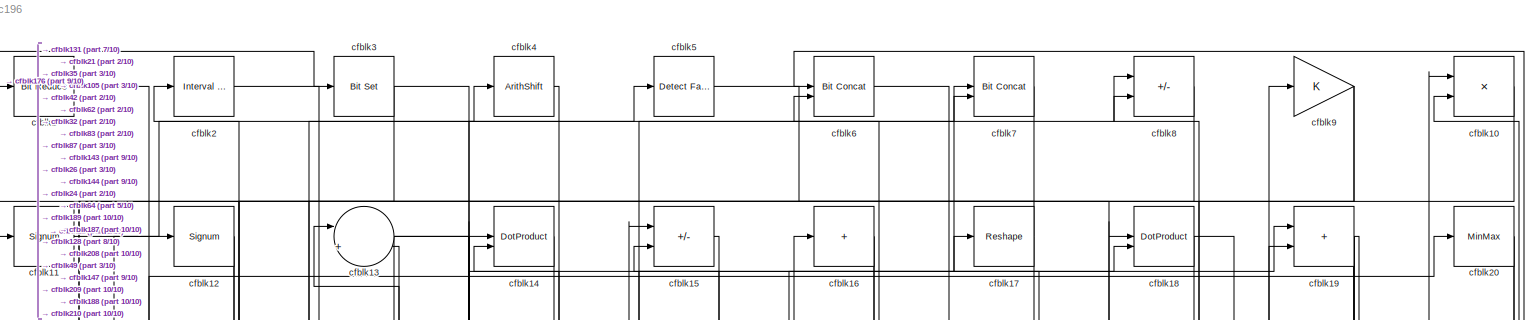
[diagram: root canvas - part 1/10, full width, top band]
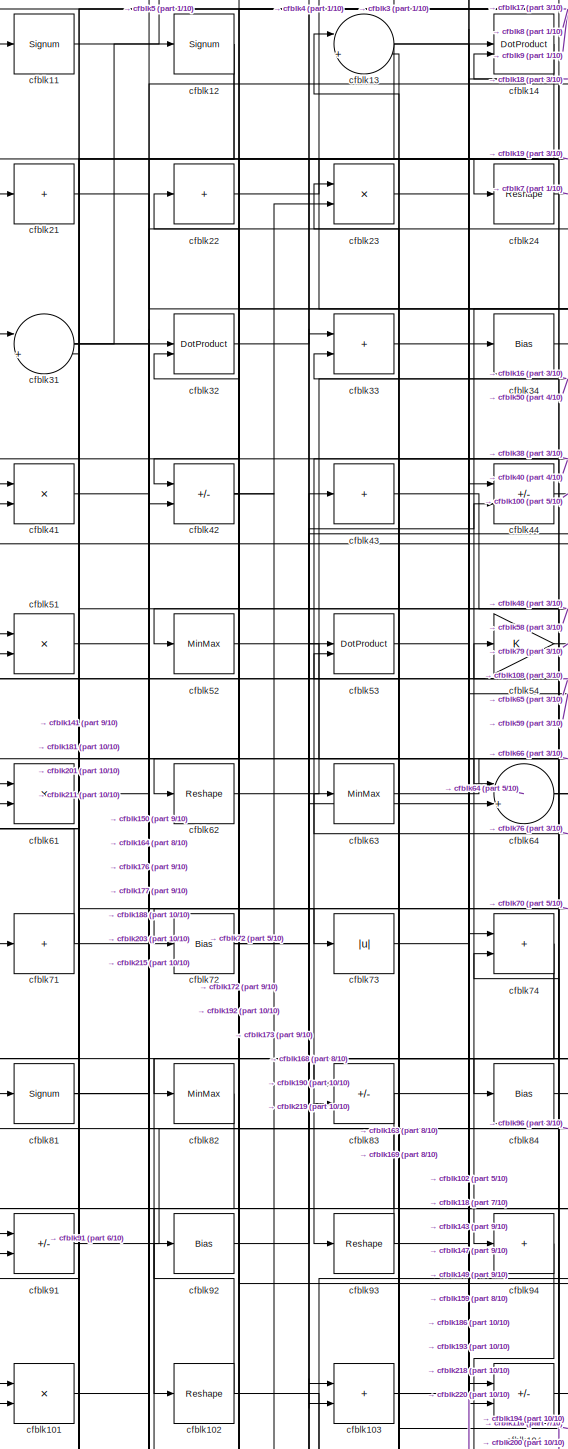
[diagram: root canvas - part 2/10, top left region]
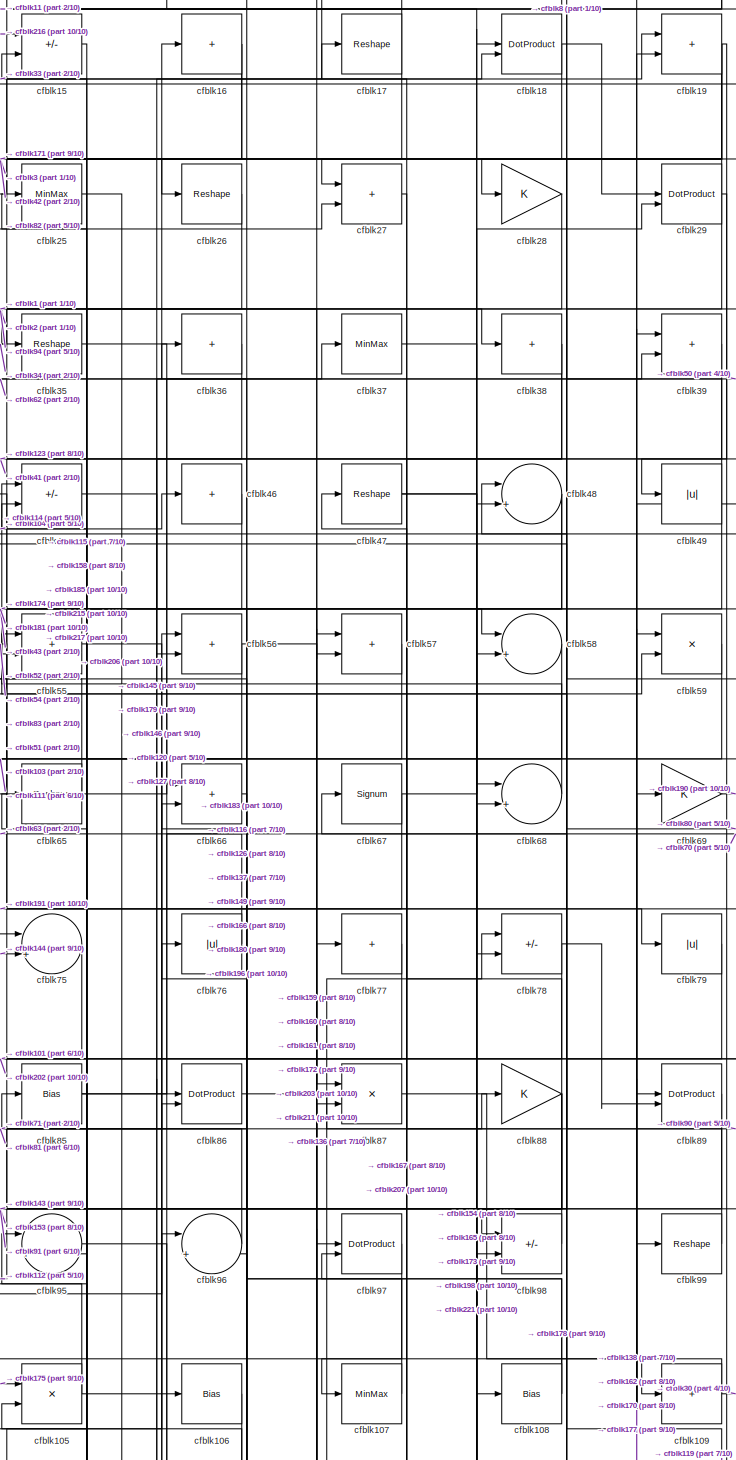
[diagram: root canvas - part 3/10, top center region]
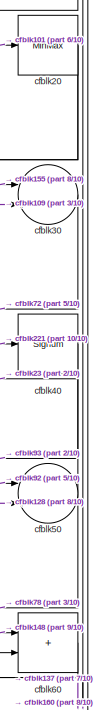
[diagram: root canvas - part 4/10, top right region]
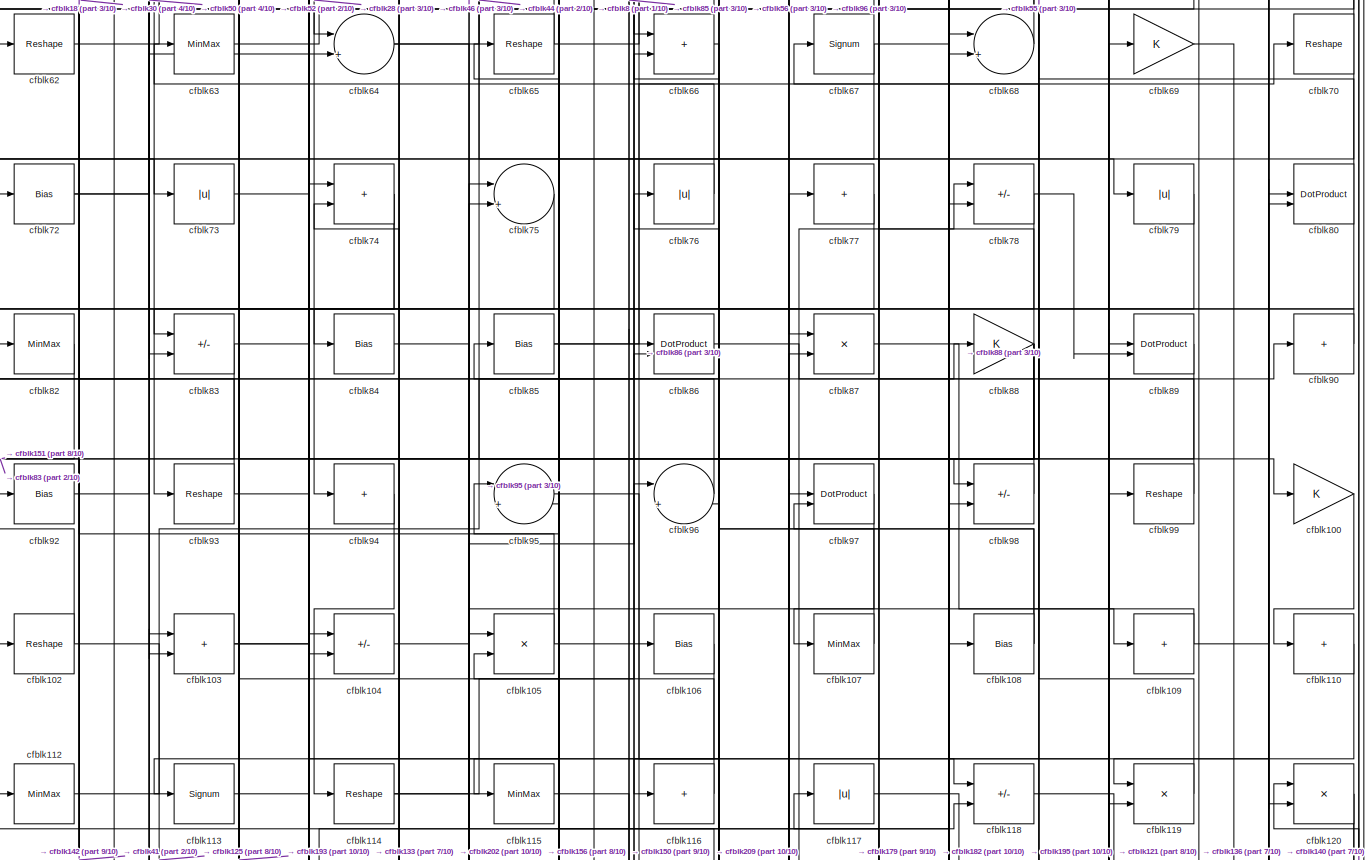
[diagram: root canvas - part 5/10, full width, middle band]
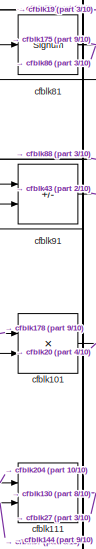
[diagram: root canvas - part 6/10, middle left region]
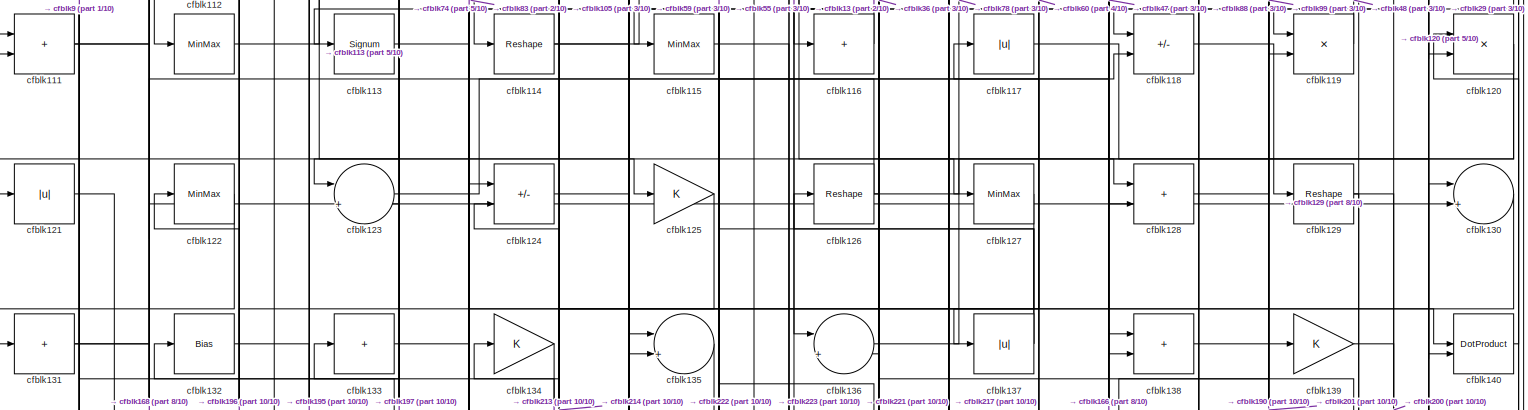
[diagram: root canvas - part 7/10, full width, middle band]
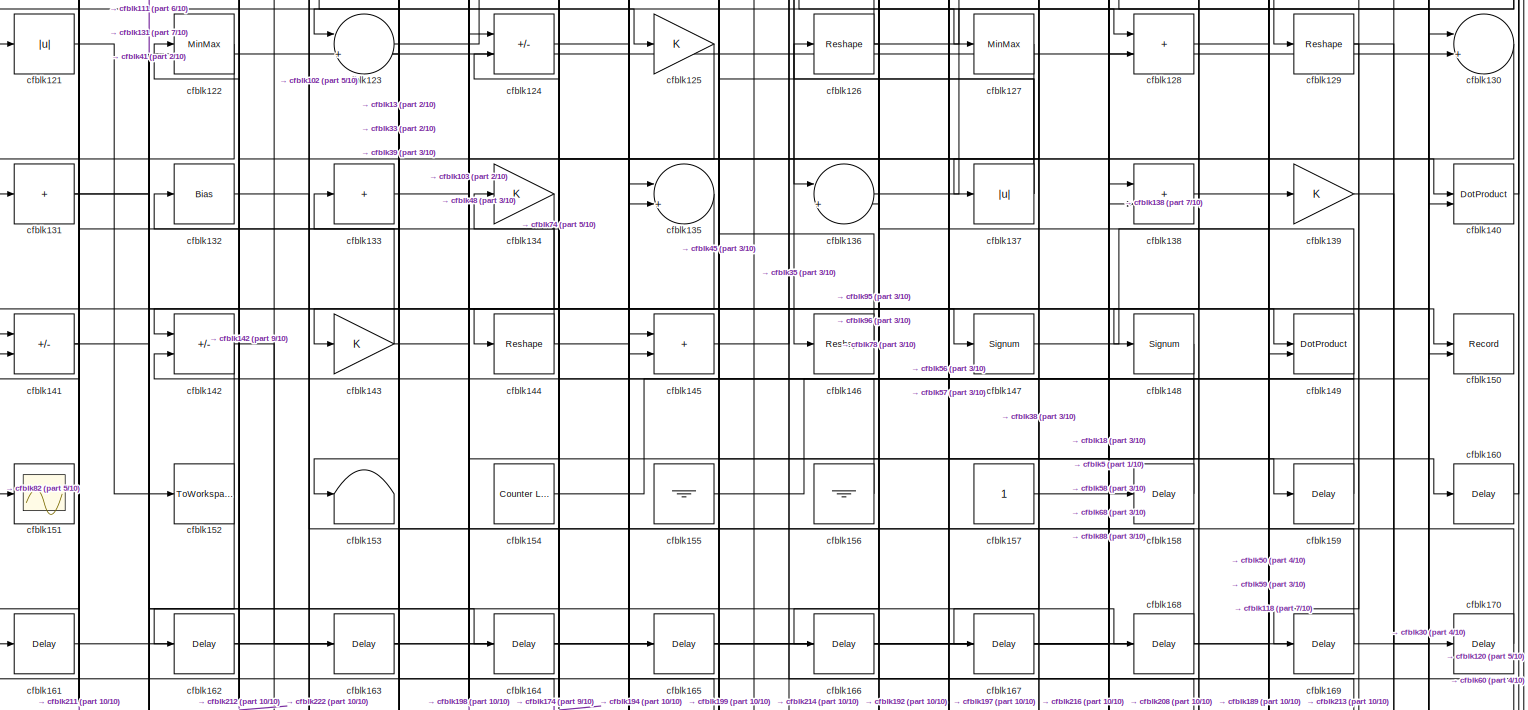
[diagram: root canvas - part 8/10, full width, middle band]
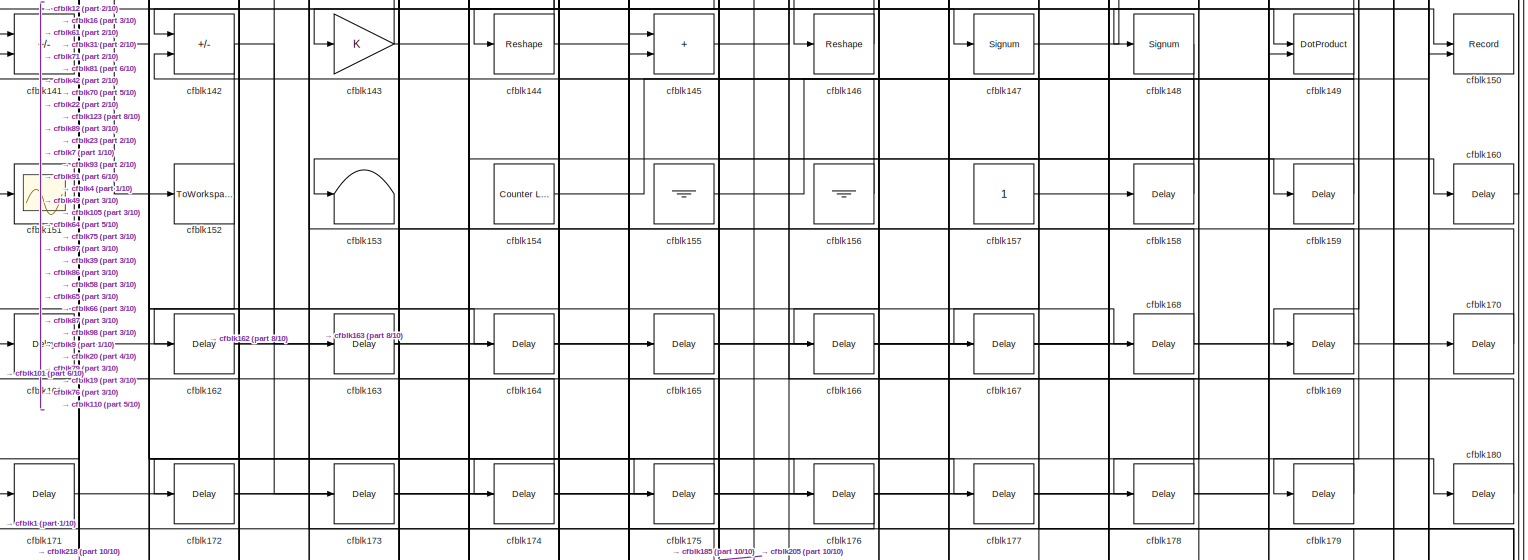
[diagram: root canvas - part 9/10, full width, bottom band]
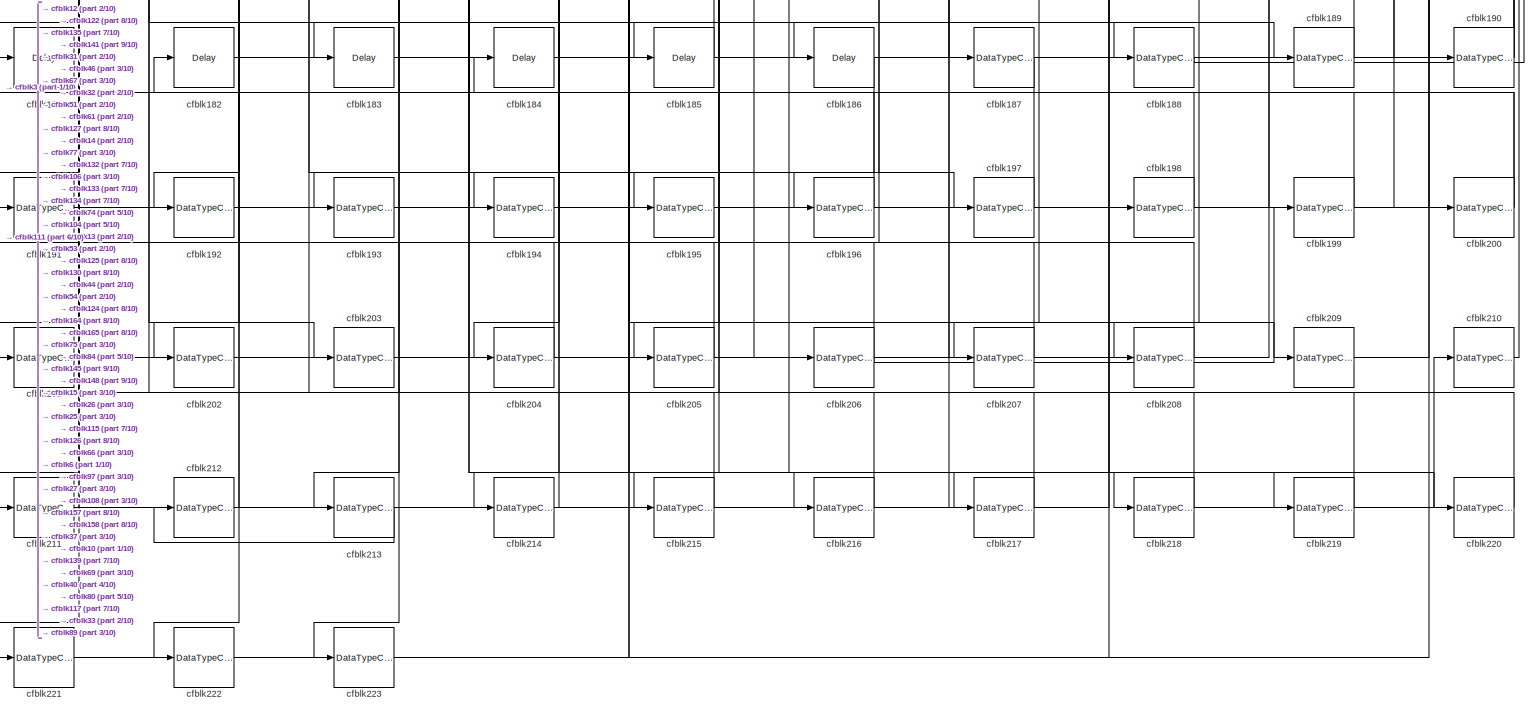
[diagram: root canvas - part 10/10, full width, bottom band]
MODEL slx_769033dcc196
KIND model
CONFIG AbsTol = auto
CONFIG EnableMultiTasking = off
CONFIG FixedStep = auto
CONFIG MaxStep = auto
CONFIG MinStep = auto
CONFIG RelTol = 1e-3
CONFIG SampleTimeConstraint = Unconstrained
CONFIG SolverName = VariableStepAuto
CONFIG StartTime = 0.0
CONFIG StopTime = 10.0
BLOCK [Reference] cfblk1  REF=hdlsllib/Logic and Bit
Operations/Bit Reduce
  SourceBlock = hdlsllib/Logic and Bit\nOperations/Bit Reduce
  SourceType = Bit Reduce
BLOCK [Product] cfblk10
  Inputs = */
  RndMeth = Zero
  SaturateOnIntegerOverflow = on
BLOCK [Gain] cfblk100
BLOCK [Product] cfblk101
  Inputs = */
  RndMeth = Zero
  SaturateOnIntegerOverflow = on
BLOCK [Reshape] cfblk102
BLOCK [Sum] cfblk103
  IconShape = rectangular
BLOCK [Sum] cfblk104
  IconShape = rectangular
  Inputs = +-
BLOCK [Product] cfblk105
  Inputs = */
  RndMeth = Zero
  SaturateOnIntegerOverflow = on
BLOCK [Bias] cfblk106
  Bias = 0.0
  SaturateOnIntegerOverflow = off
BLOCK [MinMax] cfblk107
BLOCK [Bias] cfblk108
  Bias = 0.0
  SaturateOnIntegerOverflow = off
BLOCK [Sum] cfblk109
  IconShape = rectangular
  Inputs = +
BLOCK [Signum] cfblk11
BLOCK [Sum] cfblk110
  IconShape = rectangular
  Inputs = +
BLOCK [Sum] cfblk111
  IconShape = rectangular
BLOCK [MinMax] cfblk112
BLOCK [Signum] cfblk113
BLOCK [Reshape] cfblk114
BLOCK [MinMax] cfblk115
BLOCK [Sum] cfblk116
  IconShape = rectangular
  Inputs = +
BLOCK [Abs] cfblk117
  SaturateOnIntegerOverflow = off
BLOCK [Sum] cfblk118
  IconShape = rectangular
  Inputs = +-
BLOCK [Product] cfblk119
  Inputs = */
  RndMeth = Zero
  SaturateOnIntegerOverflow = on
BLOCK [Signum] cfblk12
BLOCK [Product] cfblk120
  Inputs = */
  RndMeth = Zero
  SaturateOnIntegerOverflow = on
BLOCK [Abs] cfblk121
  SaturateOnIntegerOverflow = off
BLOCK [MinMax] cfblk122
BLOCK [Sum] cfblk123
  Inputs = |++
BLOCK [Sum] cfblk124
  IconShape = rectangular
  Inputs = +-
BLOCK [Gain] cfblk125
BLOCK [Reshape] cfblk126
BLOCK [MinMax] cfblk127
BLOCK [Sum] cfblk128
  IconShape = rectangular
BLOCK [Reshape] cfblk129
BLOCK [Sum] cfblk13
  Inputs = |++
BLOCK [Sum] cfblk130
  Inputs = |++
BLOCK [Sum] cfblk131
  IconShape = rectangular
  Inputs = +
BLOCK [Bias] cfblk132
  Bias = 0.0
  SaturateOnIntegerOverflow = off
BLOCK [Sum] cfblk133
  IconShape = rectangular
  Inputs = +
BLOCK [Gain] cfblk134
BLOCK [Sum] cfblk135
  Inputs = |++
BLOCK [Sum] cfblk136
  Inputs = |++
BLOCK [Abs] cfblk137
  SaturateOnIntegerOverflow = off
BLOCK [Sum] cfblk138
  IconShape = rectangular
BLOCK [Gain] cfblk139
BLOCK [DotProduct] cfblk14
  OutDataTypeStr = Inherit: Inherit via internal rule
BLOCK [DotProduct] cfblk140
  OutDataTypeStr = Inherit: Inherit via internal rule
BLOCK [Sum] cfblk141
  IconShape = rectangular
  Inputs = +-
BLOCK [Sum] cfblk142
  IconShape = rectangular
  Inputs = +-
BLOCK [Gain] cfblk143
BLOCK [Reshape] cfblk144
BLOCK [Sum] cfblk145
  IconShape = rectangular
BLOCK [Reshape] cfblk146
BLOCK [Signum] cfblk147
BLOCK [Signum] cfblk148
BLOCK [DotProduct] cfblk149
  OutDataTypeStr = Inherit: Inherit via internal rule
BLOCK [Sum] cfblk15
  IconShape = rectangular
  Inputs = +-
BLOCK [Record] cfblk150
  CompatibilityTag = XY
  FileSettingsInternal = {"entries":[{"content":{"excelSettings":{"content":{},"type":"Streamout.ExcelSettings"}},"type":"Streamout.FileSettingStorage","uuid":""}],"packageUris":["http:\/\/schema.mathworks.com\/mf0\/streamout_blocks\/R2020a"],"version":"1.0"}
  Layout = [1 1]
  SignalsInternal = {"entries":[{"content":{"signals":[{"content":{"blockPath":[],"dimensions":[1],"domain":"","lineColor":"#a2142f","plots":[1],"port":1,"signalID":1100,"signalName":"XY Graph:1"},"type":"RecordBlkView.Signal","uuid":""},{"content":{"blockPath":[],"dimensions":[1],"domain":"","lineColor":"#139fff","plots":[1],"port":2,"signalID":1103,"signalName":"XY Graph:2"},"type":"RecordBlkView.Signal","uuid":""}...<+146ch>
  VisualizationBindings = {"xyplotplugin":{"info":[{"series":[{"bindingParametersList":[{"parameter":"X-Axis","signalID":1100,"signalName":"XY Graph:1"},{"parameter":"Y-Axis","signalID":1103,"signalName":"XY Graph:2"}],"seriesID":10004}],"subplotID":1}]}}
  st = -1
BLOCK [Scope] cfblk151
  Floating = off
  NumInputPorts = 1
  ScopeSpecificationString = Simulink.scopes.TimeScopeBlockCfg('CurrentConfiguration', extmgr.ConfigurationSet(extmgr.Configuration('Core','General UI',true),extmgr.Configuration('Core','Source UI',true),extmgr.Configuration('Sources','WiredSimulink',true,'DataLoggingVariableName','ScopeData2','DataLoggingSaveFormat','Array','DataLoggingLimitDataPoints',true,'DataLoggingDecimation','1'),extmgr.Configuration('Visuals','Time Do...<+868ch>
BLOCK [ToWorkspace] cfblk152
  MaxDataPoints = inf
  SampleTime = -1
  SaveFormat = Timeseries
  VariableName = simout
BLOCK [Terminator] cfblk153
BLOCK [Reference] cfblk154  REF=hdlsllib/Sources/Counter
Limited
  SourceBlock = hdlsllib/Sources/Counter\nLimited
  SourceType = Counter Limited
BLOCK [Ground] cfblk155
BLOCK [Ground] cfblk156
BLOCK [Constant] cfblk157
  SampleTime = -1
BLOCK [Delay] cfblk158
  InputPortMap = u0
  SampleTime = 1
BLOCK [Delay] cfblk159
  InputPortMap = u0
  SampleTime = 1
BLOCK [Sum] cfblk16
  IconShape = rectangular
  Inputs = +
BLOCK [Delay] cfblk160
  InputPortMap = u0
  SampleTime = 1
BLOCK [Delay] cfblk161
  InputPortMap = u0
  SampleTime = 1
BLOCK [Delay] cfblk162
  InputPortMap = u0
  SampleTime = 1
BLOCK [Delay] cfblk163
  InputPortMap = u0
  SampleTime = 1
BLOCK [Delay] cfblk164
  InputPortMap = u0
  SampleTime = 1
BLOCK [Delay] cfblk165
  InputPortMap = u0
  SampleTime = 1
BLOCK [Delay] cfblk166
  InputPortMap = u0
  SampleTime = 1
BLOCK [Delay] cfblk167
  InputPortMap = u0
  SampleTime = 1
BLOCK [Delay] cfblk168
  InputPortMap = u0
  SampleTime = 1
BLOCK [Delay] cfblk169
  InputPortMap = u0
  SampleTime = 1
BLOCK [Reshape] cfblk17
BLOCK [Delay] cfblk170
  InputPortMap = u0
  SampleTime = 1
BLOCK [Delay] cfblk171
  InputPortMap = u0
  SampleTime = 1
BLOCK [Delay] cfblk172
  InputPortMap = u0
  SampleTime = 1
BLOCK [Delay] cfblk173
  InputPortMap = u0
  SampleTime = 1
BLOCK [Delay] cfblk174
  InputPortMap = u0
  SampleTime = 1
BLOCK [Delay] cfblk175
  InputPortMap = u0
  SampleTime = 1
BLOCK [Delay] cfblk176
  InputPortMap = u0
  SampleTime = 1
BLOCK [Delay] cfblk177
  InputPortMap = u0
  SampleTime = 1
BLOCK [Delay] cfblk178
  InputPortMap = u0
  SampleTime = 1
BLOCK [Delay] cfblk179
  InputPortMap = u0
  SampleTime = 1
BLOCK [DotProduct] cfblk18
  OutDataTypeStr = Inherit: Inherit via internal rule
BLOCK [Delay] cfblk180
  InputPortMap = u0
  SampleTime = 1
BLOCK [Delay] cfblk181
  InputPortMap = u0
  SampleTime = 1
BLOCK [Delay] cfblk182
  InputPortMap = u0
  SampleTime = 1
BLOCK [Delay] cfblk183
  InputPortMap = u0
  SampleTime = 1
BLOCK [Delay] cfblk184
  InputPortMap = u0
  SampleTime = 1
BLOCK [Delay] cfblk185
  InputPortMap = u0
  SampleTime = 1
BLOCK [Delay] cfblk186
  InputPortMap = u0
  SampleTime = 1
BLOCK [DataTypeConversion] cfblk187
  OutDataTypeStr = uint8
  RndMeth = Floor
  SaturateOnIntegerOverflow = off
BLOCK [DataTypeConversion] cfblk188
  OutDataTypeStr = uint8
  RndMeth = Floor
  SaturateOnIntegerOverflow = off
BLOCK [DataTypeConversion] cfblk189
  OutDataTypeStr = uint8
  RndMeth = Floor
  SaturateOnIntegerOverflow = off
BLOCK [Sum] cfblk19
  IconShape = rectangular
BLOCK [DataTypeConversion] cfblk190
  RndMeth = Floor
  SaturateOnIntegerOverflow = off
BLOCK [DataTypeConversion] cfblk191
  OutDataTypeStr = uint8
  RndMeth = Floor
  SaturateOnIntegerOverflow = off
BLOCK [DataTypeConversion] cfblk192
  OutDataTypeStr = uint8
  RndMeth = Floor
  SaturateOnIntegerOverflow = off
BLOCK [DataTypeConversion] cfblk193
  OutDataTypeStr = uint8
  RndMeth = Floor
  SaturateOnIntegerOverflow = off
BLOCK [DataTypeConversion] cfblk194
  OutDataTypeStr = uint8
  RndMeth = Floor
  SaturateOnIntegerOverflow = off
BLOCK [DataTypeConversion] cfblk195
  OutDataTypeStr = uint8
  RndMeth = Floor
  SaturateOnIntegerOverflow = off
BLOCK [DataTypeConversion] cfblk196
  OutDataTypeStr = uint8
  RndMeth = Floor
  SaturateOnIntegerOverflow = off
BLOCK [DataTypeConversion] cfblk197
  RndMeth = Floor
  SaturateOnIntegerOverflow = off
BLOCK [DataTypeConversion] cfblk198
  OutDataTypeStr = uint8
  RndMeth = Floor
  SaturateOnIntegerOverflow = off
BLOCK [DataTypeConversion] cfblk199
  OutDataTypeStr = uint8
  RndMeth = Floor
  SaturateOnIntegerOverflow = off
BLOCK [Reference] cfblk2  REF=hdlsllib/Logic and Bit
Operations/Interval Test
  SourceBlock = hdlsllib/Logic and Bit\nOperations/Interval Test
  SourceType = Interval Test
BLOCK [MinMax] cfblk20
BLOCK [DataTypeConversion] cfblk200
  RndMeth = Floor
  SaturateOnIntegerOverflow = off
BLOCK [DataTypeConversion] cfblk201
  OutDataTypeStr = uint8
  RndMeth = Floor
  SaturateOnIntegerOverflow = off
BLOCK [DataTypeConversion] cfblk202
  OutDataTypeStr = uint8
  RndMeth = Floor
  SaturateOnIntegerOverflow = off
BLOCK [DataTypeConversion] cfblk203
  OutDataTypeStr = uint8
  RndMeth = Floor
  SaturateOnIntegerOverflow = off
BLOCK [DataTypeConversion] cfblk204
  OutDataTypeStr = uint8
  RndMeth = Floor
  SaturateOnIntegerOverflow = off
BLOCK [DataTypeConversion] cfblk205
  OutDataTypeStr = uint8
  RndMeth = Floor
  SaturateOnIntegerOverflow = off
BLOCK [DataTypeConversion] cfblk206
  RndMeth = Floor
  SaturateOnIntegerOverflow = off
BLOCK [DataTypeConversion] cfblk207
  OutDataTypeStr = uint8
  RndMeth = Floor
  SaturateOnIntegerOverflow = off
BLOCK [DataTypeConversion] cfblk208
  OutDataTypeStr = uint8
  RndMeth = Floor
  SaturateOnIntegerOverflow = off
BLOCK [DataTypeConversion] cfblk209
  OutDataTypeStr = uint8
  RndMeth = Floor
  SaturateOnIntegerOverflow = off
BLOCK [Sum] cfblk21
  IconShape = rectangular
  Inputs = +
BLOCK [DataTypeConversion] cfblk210
  OutDataTypeStr = uint8
  RndMeth = Floor
  SaturateOnIntegerOverflow = off
BLOCK [DataTypeConversion] cfblk211
  RndMeth = Floor
  SaturateOnIntegerOverflow = off
BLOCK [DataTypeConversion] cfblk212
  OutDataTypeStr = uint8
  RndMeth = Floor
  SaturateOnIntegerOverflow = off
BLOCK [DataTypeConversion] cfblk213
  RndMeth = Floor
  SaturateOnIntegerOverflow = off
BLOCK [DataTypeConversion] cfblk214
  OutDataTypeStr = uint8
  RndMeth = Floor
  SaturateOnIntegerOverflow = off
BLOCK [DataTypeConversion] cfblk215
  OutDataTypeStr = uint8
  RndMeth = Floor
  SaturateOnIntegerOverflow = off
BLOCK [DataTypeConversion] cfblk216
  OutDataTypeStr = uint8
  RndMeth = Floor
  SaturateOnIntegerOverflow = off
BLOCK [DataTypeConversion] cfblk217
  OutDataTypeStr = uint8
  RndMeth = Floor
  SaturateOnIntegerOverflow = off
BLOCK [DataTypeConversion] cfblk218
  RndMeth = Floor
  SaturateOnIntegerOverflow = off
BLOCK [DataTypeConversion] cfblk219
  OutDataTypeStr = uint8
  RndMeth = Floor
  SaturateOnIntegerOverflow = off
BLOCK [Sum] cfblk22
  IconShape = rectangular
  Inputs = +
BLOCK [DataTypeConversion] cfblk220
  OutDataTypeStr = uint8
  RndMeth = Floor
  SaturateOnIntegerOverflow = off
BLOCK [DataTypeConversion] cfblk221
  RndMeth = Floor
  SaturateOnIntegerOverflow = off
BLOCK [DataTypeConversion] cfblk222
  OutDataTypeStr = uint8
  RndMeth = Floor
  SaturateOnIntegerOverflow = off
BLOCK [DataTypeConversion] cfblk223
  OutDataTypeStr = uint8
  RndMeth = Floor
  SaturateOnIntegerOverflow = off
BLOCK [Product] cfblk23
  Inputs = */
  RndMeth = Zero
  SaturateOnIntegerOverflow = on
BLOCK [Reshape] cfblk24
BLOCK [MinMax] cfblk25
BLOCK [Reshape] cfblk26
BLOCK [Sum] cfblk27
  IconShape = rectangular
BLOCK [Gain] cfblk28
BLOCK [DotProduct] cfblk29
  OutDataTypeStr = Inherit: Inherit via internal rule
BLOCK [Reference] cfblk3  REF=simulink/Logic and Bit
Operations/Bit Set
  LibrarySourceBlock = hdlsllib/Logic and Bit\nOperations/Bit Set
  SourceBlock = simulink/Logic and Bit\nOperations/Bit Set
  SourceType = Bit Set
BLOCK [Sum] cfblk30
  Inputs = |++
BLOCK [Sum] cfblk31
  Inputs = |++
BLOCK [DotProduct] cfblk32
  OutDataTypeStr = Inherit: Inherit via internal rule
BLOCK [Sum] cfblk33
  IconShape = rectangular
BLOCK [Bias] cfblk34
  Bias = 0.0
  SaturateOnIntegerOverflow = off
BLOCK [Reshape] cfblk35
BLOCK [Sum] cfblk36
  IconShape = rectangular
  Inputs = +
BLOCK [MinMax] cfblk37
BLOCK [Sum] cfblk38
  IconShape = rectangular
  Inputs = +
BLOCK [Sum] cfblk39
  IconShape = rectangular
BLOCK [ArithShift] cfblk4
  BitShiftNumber = 8
  InputPortMap = u0
BLOCK [Signum] cfblk40
BLOCK [Product] cfblk41
  Inputs = */
  RndMeth = Zero
  SaturateOnIntegerOverflow = on
BLOCK [Sum] cfblk42
  IconShape = rectangular
  Inputs = +-
BLOCK [Sum] cfblk43
  IconShape = rectangular
  Inputs = +
BLOCK [Sum] cfblk44
  IconShape = rectangular
  Inputs = +-
BLOCK [Sum] cfblk45
  IconShape = rectangular
  Inputs = +-
BLOCK [Sum] cfblk46
  IconShape = rectangular
  Inputs = +
BLOCK [Reshape] cfblk47
BLOCK [Sum] cfblk48
  Inputs = |++
BLOCK [Abs] cfblk49
  SaturateOnIntegerOverflow = off
BLOCK [Reference] cfblk5  REF=hdlsllib/Logic and Bit
Operations/Detect Fall
Negative
  SourceBlock = hdlsllib/Logic and Bit\nOperations/Detect Fall\nNegative
  SourceType = Detect Fall Negative
BLOCK [Sum] cfblk50
  Inputs = |++
BLOCK [Product] cfblk51
  Inputs = */
  RndMeth = Zero
  SaturateOnIntegerOverflow = on
BLOCK [MinMax] cfblk52
BLOCK [DotProduct] cfblk53
  OutDataTypeStr = Inherit: Inherit via internal rule
BLOCK [Gain] cfblk54
BLOCK [Sum] cfblk55
  IconShape = rectangular
BLOCK [Sum] cfblk56
  IconShape = rectangular
BLOCK [Sum] cfblk57
  IconShape = rectangular
BLOCK [Sum] cfblk58
  Inputs = |++
BLOCK [Product] cfblk59
  Inputs = */
  RndMeth = Zero
  SaturateOnIntegerOverflow = on
BLOCK [Reference] cfblk6  REF=hdlsllib/Logic and Bit
Operations/Bit Concat
  SourceBlock = hdlsllib/Logic and Bit\nOperations/Bit Concat
  SourceType = Bit Concat
BLOCK [Sum] cfblk60
  IconShape = rectangular
BLOCK [Product] cfblk61
  Inputs = */
  RndMeth = Zero
  SaturateOnIntegerOverflow = on
BLOCK [Reshape] cfblk62
BLOCK [MinMax] cfblk63
BLOCK [Sum] cfblk64
  Inputs = |++
BLOCK [Reshape] cfblk65
BLOCK [Sum] cfblk66
  IconShape = rectangular
BLOCK [Signum] cfblk67
BLOCK [Sum] cfblk68
  Inputs = |++
BLOCK [Gain] cfblk69
BLOCK [Reference] cfblk7  REF=hdlsllib/Logic and Bit
Operations/Bit Concat
  SourceBlock = hdlsllib/Logic and Bit\nOperations/Bit Concat
  SourceType = Bit Concat
BLOCK [Reshape] cfblk70
BLOCK [Sum] cfblk71
  IconShape = rectangular
  Inputs = +
BLOCK [Bias] cfblk72
  Bias = 0.0
  SaturateOnIntegerOverflow = off
BLOCK [Abs] cfblk73
  SaturateOnIntegerOverflow = off
BLOCK [Sum] cfblk74
  IconShape = rectangular
BLOCK [Sum] cfblk75
  Inputs = |++
BLOCK [Abs] cfblk76
  SaturateOnIntegerOverflow = off
BLOCK [Sum] cfblk77
  IconShape = rectangular
  Inputs = +
BLOCK [Sum] cfblk78
  IconShape = rectangular
  Inputs = +-
BLOCK [Abs] cfblk79
  SaturateOnIntegerOverflow = off
BLOCK [Sum] cfblk8
  IconShape = rectangular
  Inputs = +-
BLOCK [DotProduct] cfblk80
  OutDataTypeStr = Inherit: Inherit via internal rule
BLOCK [Signum] cfblk81
BLOCK [MinMax] cfblk82
BLOCK [Sum] cfblk83
  IconShape = rectangular
  Inputs = +-
BLOCK [Bias] cfblk84
  Bias = 0.0
  SaturateOnIntegerOverflow = off
BLOCK [Bias] cfblk85
  Bias = 0.0
  SaturateOnIntegerOverflow = off
BLOCK [DotProduct] cfblk86
  OutDataTypeStr = Inherit: Inherit via internal rule
BLOCK [Product] cfblk87
  Inputs = */
  RndMeth = Zero
  SaturateOnIntegerOverflow = on
BLOCK [Gain] cfblk88
BLOCK [DotProduct] cfblk89
  OutDataTypeStr = Inherit: Inherit via internal rule
BLOCK [Gain] cfblk9
BLOCK [Sum] cfblk90
  IconShape = rectangular
  Inputs = +
BLOCK [Sum] cfblk91
  IconShape = rectangular
  Inputs = +-
BLOCK [Bias] cfblk92
  Bias = 0.0
  SaturateOnIntegerOverflow = off
BLOCK [Reshape] cfblk93
BLOCK [Sum] cfblk94
  IconShape = rectangular
  Inputs = +
BLOCK [Sum] cfblk95
  Inputs = |++
BLOCK [Sum] cfblk96
  Inputs = |++
BLOCK [DotProduct] cfblk97
  OutDataTypeStr = Inherit: Inherit via internal rule
BLOCK [Sum] cfblk98
  IconShape = rectangular
  Inputs = +-
BLOCK [Reshape] cfblk99
LINE cfblk100:1 -> cfblk110:1
LINE cfblk101:1 -> cfblk20:1
NET cfblk102:1 -> cfblk125:1, cfblk92:1
NET cfblk103:1 -> cfblk159:1, cfblk59:2
LINE cfblk104:1 -> cfblk46:1
NET cfblk105:1 -> cfblk106:1, cfblk2:1
LINE cfblk106:1 -> cfblk183:1
LINE cfblk107:1 -> cfblk85:1
NET cfblk108:1 -> cfblk51:2, cfblk97:2
NET cfblk109:1 -> cfblk107:1, cfblk30:2
LINE cfblk10:1 -> cfblk208:1
LINE cfblk110:1 -> cfblk179:1
NET cfblk111:1 -> cfblk130:2, cfblk27:2
LINE cfblk112:1 -> cfblk88:1
LINE cfblk113:1 -> cfblk140:1
NET cfblk114:1 -> cfblk56:1, cfblk96:1
LINE cfblk115:1 -> cfblk217:1
LINE cfblk116:1 -> cfblk13:2
LINE cfblk117:1 -> cfblk140:2
LINE cfblk118:1 -> cfblk129:1
LINE cfblk119:1 -> cfblk48:1
LINE cfblk11:1 -> cfblk5:1
NET cfblk120:1 -> cfblk121:1, cfblk136:2
LINE cfblk121:1 -> cfblk152:1
LINE cfblk122:1 -> cfblk211:1
LINE cfblk123:1 -> cfblk48:2
LINE cfblk124:1 -> cfblk197:1
LINE cfblk125:1 -> cfblk194:1
NET cfblk126:1 -> cfblk128:1, cfblk95:1, cfblk96:2
LINE cfblk127:1 -> cfblk222:1
LINE cfblk128:1 -> cfblk50:2
NET cfblk129:1 -> cfblk169:1, cfblk170:1
NET cfblk12:1 -> cfblk141:1, cfblk201:1
LINE cfblk130:1 -> cfblk214:1
NET cfblk131:1 -> cfblk118:2, cfblk168:1
LINE cfblk132:1 -> cfblk195:1
LINE cfblk133:1 -> cfblk74:1
LINE cfblk134:1 -> cfblk213:1
LINE cfblk135:1 -> cfblk221:1
LINE cfblk136:1 -> cfblk78:1
NET cfblk137:1 -> cfblk105:2, cfblk36:1
LINE cfblk138:1 -> cfblk99:1
LINE cfblk139:1 -> cfblk200:1
NET cfblk13:1 -> cfblk103:2, cfblk186:1, cfblk220:1
LINE cfblk140:1 -> cfblk120:1
NET cfblk141:1 -> cfblk180:1, cfblk61:1
NET cfblk142:1 -> cfblk162:1, cfblk163:1
NET cfblk143:1 -> cfblk22:1, cfblk7:2
NET cfblk144:1 -> cfblk75:2, cfblk91:2
LINE cfblk145:1 -> cfblk39:2
LINE cfblk146:1 -> cfblk65:1
LINE cfblk147:1 -> cfblk9:1
LINE cfblk148:1 -> cfblk205:1
NET cfblk149:1 -> cfblk142:2, cfblk76:1
LINE cfblk14:1 -> cfblk192:1
LINE cfblk154:1 -> cfblk58:2
LINE cfblk155:1 -> cfblk30:1
LINE cfblk156:1 -> cfblk74:2
LINE cfblk157:1 -> cfblk189:1
LINE cfblk158:1 -> cfblk45:2
LINE cfblk159:1 -> cfblk57:1
LINE cfblk15:1 -> cfblk215:1
LINE cfblk160:1 -> cfblk60:2
LINE cfblk161:1 -> cfblk68:2
LINE cfblk162:1 -> cfblk39:1
LINE cfblk163:1 -> cfblk33:2
LINE cfblk164:1 -> cfblk216:1
LINE cfblk165:1 -> cfblk18:1
LINE cfblk166:1 -> cfblk138:1
LINE cfblk167:1 -> cfblk130:1
LINE cfblk168:1 -> cfblk103:1
LINE cfblk169:1 -> cfblk13:1
NET cfblk16:1 -> cfblk171:1, cfblk95:2
LINE cfblk170:1 -> cfblk59:1
LINE cfblk171:1 -> cfblk149:2
LINE cfblk172:1 -> cfblk87:2
LINE cfblk173:1 -> cfblk98:2
LINE cfblk174:1 -> cfblk123:2
LINE cfblk175:1 -> cfblk105:1
LINE cfblk176:1 -> cfblk1:1
LINE cfblk177:1 -> cfblk19:2
LINE cfblk178:1 -> cfblk101:1
LINE cfblk179:1 -> cfblk86:1
NET cfblk17:1 -> cfblk11:1, cfblk42:2
LINE cfblk180:1 -> cfblk66:2
LINE cfblk181:1 -> cfblk31:2
LINE cfblk182:1 -> cfblk80:2
LINE cfblk183:1 -> cfblk75:1
LINE cfblk184:1 -> cfblk204:1
LINE cfblk185:1 -> cfblk145:1
LINE cfblk186:1 -> cfblk223:1
LINE cfblk187:1 -> cfblk3:1
LINE cfblk188:1 -> cfblk6:1
LINE cfblk189:1 -> cfblk6:2
NET cfblk18:1 -> cfblk29:1, cfblk82:1
NET cfblk190:1 -> cfblk117:1, cfblk33:1, cfblk89:1
LINE cfblk191:1 -> cfblk69:1
LINE cfblk192:1 -> cfblk165:1
LINE cfblk193:1 -> cfblk14:1
LINE cfblk194:1 -> cfblk14:2
LINE cfblk195:1 -> cfblk80:1
LINE cfblk196:1 -> cfblk132:1
NET cfblk197:1 -> cfblk133:1, cfblk219:1
LINE cfblk198:1 -> cfblk124:1
LINE cfblk199:1 -> cfblk124:2
NET cfblk19:1 -> cfblk27:1, cfblk49:1, cfblk55:2, cfblk81:1, cfblk83:1
LINE cfblk1:1 -> cfblk35:1
NET cfblk200:1 -> cfblk44:1, cfblk54:1
LINE cfblk201:1 -> cfblk139:1
LINE cfblk202:1 -> cfblk104:1
LINE cfblk203:1 -> cfblk77:1
LINE cfblk204:1 -> cfblk111:1
LINE cfblk205:1 -> cfblk184:1
NET cfblk206:1 -> cfblk182:1, cfblk199:1
LINE cfblk207:1 -> cfblk25:1
LINE cfblk208:1 -> cfblk126:1
LINE cfblk209:1 -> cfblk10:1
NET cfblk20:1 -> cfblk148:1, cfblk60:1
LINE cfblk210:1 -> cfblk10:2
NET cfblk211:1 -> cfblk61:2, cfblk97:1
LINE cfblk212:1 -> cfblk122:1
NET cfblk213:1 -> cfblk158:1, cfblk212:1
LINE cfblk214:1 -> cfblk134:1
LINE cfblk215:1 -> cfblk32:1
LINE cfblk216:1 -> cfblk15:1
LINE cfblk217:1 -> cfblk15:2
NET cfblk218:1 -> cfblk141:2, cfblk210:1
LINE cfblk219:1 -> cfblk53:1
LINE cfblk21:1 -> cfblk73:1
LINE cfblk220:1 -> cfblk53:2
NET cfblk221:1 -> cfblk108:1, cfblk40:1
LINE cfblk222:1 -> cfblk135:1
LINE cfblk223:1 -> cfblk135:2
LINE cfblk22:1 -> cfblk24:1
LINE cfblk23:1 -> cfblk147:1
LINE cfblk24:1 -> cfblk7:1
LINE cfblk25:1 -> cfblk206:1
LINE cfblk26:1 -> cfblk185:1
LINE cfblk27:1 -> cfblk207:1
LINE cfblk28:1 -> cfblk94:1
NET cfblk29:1 -> cfblk119:1, cfblk28:1, cfblk98:1
LINE cfblk2:1 -> cfblk87:1
LINE cfblk30:1 -> cfblk72:1
NET cfblk31:1 -> cfblk12:1, cfblk176:1, cfblk177:1
LINE cfblk32:1 -> cfblk4:1
LINE cfblk33:1 -> cfblk18:2
LINE cfblk34:1 -> cfblk38:1
LINE cfblk35:1 -> cfblk127:1
LINE cfblk36:1 -> cfblk56:2
LINE cfblk37:1 -> cfblk198:1
NET cfblk38:1 -> cfblk167:1, cfblk41:1
LINE cfblk39:1 -> cfblk123:1
NET cfblk3:1 -> cfblk26:1, cfblk83:2
LINE cfblk40:1 -> cfblk93:1
LINE cfblk41:1 -> cfblk164:1
NET cfblk42:1 -> cfblk172:1, cfblk173:1, cfblk23:2
LINE cfblk43:1 -> cfblk58:1
LINE cfblk44:1 -> cfblk100:1
LINE cfblk45:1 -> cfblk57:2
LINE cfblk46:1 -> cfblk181:1
NET cfblk47:1 -> cfblk119:2, cfblk68:1
NET cfblk48:1 -> cfblk116:1, cfblk52:1
NET cfblk49:1 -> cfblk174:1, cfblk8:2
LINE cfblk4:1 -> cfblk144:1
NET cfblk50:1 -> cfblk23:1, cfblk78:2
LINE cfblk51:1 -> cfblk188:1
LINE cfblk52:1 -> cfblk64:1
LINE cfblk53:1 -> cfblk218:1
LINE cfblk54:1 -> cfblk79:1
LINE cfblk55:1 -> cfblk136:1
NET cfblk56:1 -> cfblk160:1, cfblk161:1
LINE cfblk57:1 -> cfblk111:2
LINE cfblk58:1 -> cfblk146:1
LINE cfblk59:1 -> cfblk115:1
LINE cfblk5:1 -> cfblk128:2
LINE cfblk60:1 -> cfblk137:1
LINE cfblk61:1 -> cfblk203:1
LINE cfblk62:1 -> cfblk16:1
LINE cfblk63:1 -> cfblk66:1
NET cfblk64:1 -> cfblk150:1, cfblk8:1
NET cfblk65:1 -> cfblk37:1, cfblk51:1
LINE cfblk66:1 -> cfblk196:1
NET cfblk67:1 -> cfblk191:1, cfblk29:2
LINE cfblk68:1 -> cfblk45:1
LINE cfblk69:1 -> cfblk190:1
LINE cfblk6:1 -> cfblk187:1
NET cfblk70:1 -> cfblk142:1, cfblk41:2
NET cfblk71:1 -> cfblk150:2, cfblk31:1
NET cfblk72:1 -> cfblk44:2, cfblk64:2
LINE cfblk73:1 -> cfblk34:1
NET cfblk74:1 -> cfblk113:1, cfblk193:1
LINE cfblk75:1 -> cfblk101:2
LINE cfblk76:1 -> cfblk63:1
LINE cfblk77:1 -> cfblk202:1
NET cfblk78:1 -> cfblk166:1, cfblk89:2
LINE cfblk79:1 -> cfblk178:1
LINE cfblk7:1 -> cfblk21:1
NET cfblk80:1 -> cfblk112:1, cfblk55:1
NET cfblk81:1 -> cfblk175:1, cfblk86:2
LINE cfblk82:1 -> cfblk151:1
NET cfblk83:1 -> cfblk102:1, cfblk118:1
LINE cfblk84:1 -> cfblk209:1
NET cfblk85:1 -> cfblk19:1, cfblk70:1
LINE cfblk86:1 -> cfblk90:1
LINE cfblk87:1 -> cfblk109:1
NET cfblk88:1 -> cfblk104:2, cfblk138:2, cfblk153:1, cfblk17:1, cfblk91:1
LINE cfblk89:1 -> cfblk143:1
LINE cfblk8:1 -> cfblk42:1
LINE cfblk90:1 -> cfblk84:1
LINE cfblk91:1 -> cfblk43:1
LINE cfblk92:1 -> cfblk50:1
NET cfblk93:1 -> cfblk149:1, cfblk32:2
LINE cfblk94:1 -> cfblk114:1
LINE cfblk95:1 -> cfblk120:2
LINE cfblk96:1 -> cfblk71:1
LINE cfblk97:1 -> cfblk145:2
LINE cfblk98:1 -> cfblk47:1
LINE cfblk99:1 -> cfblk67:1
NET cfblk9:1 -> cfblk131:1, cfblk62:1
note: NET lines group one-source signal fan-out (src -> all destinations, sorted); 1:1 wires keep LINE
